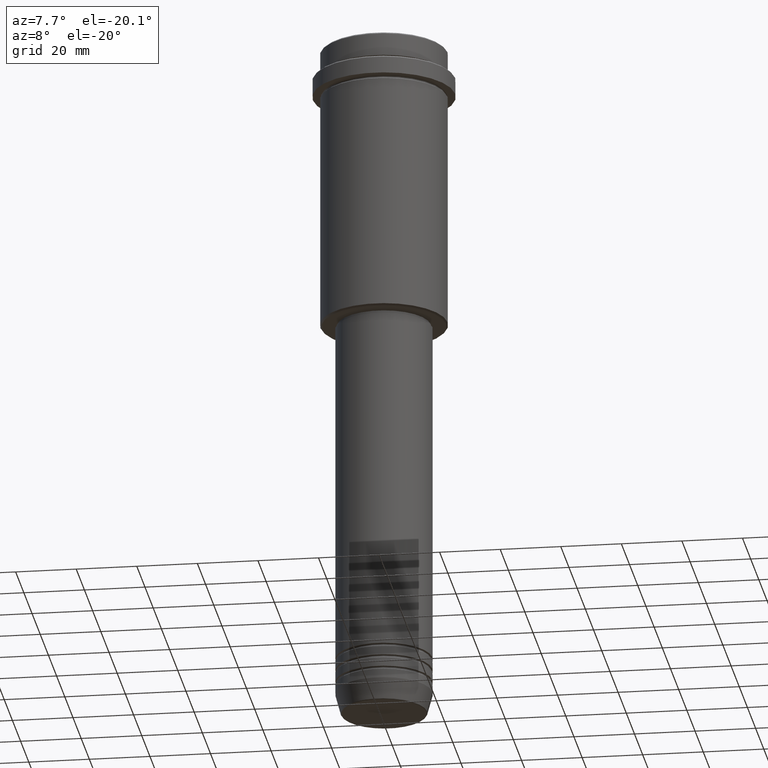
[diagram: clean part render]
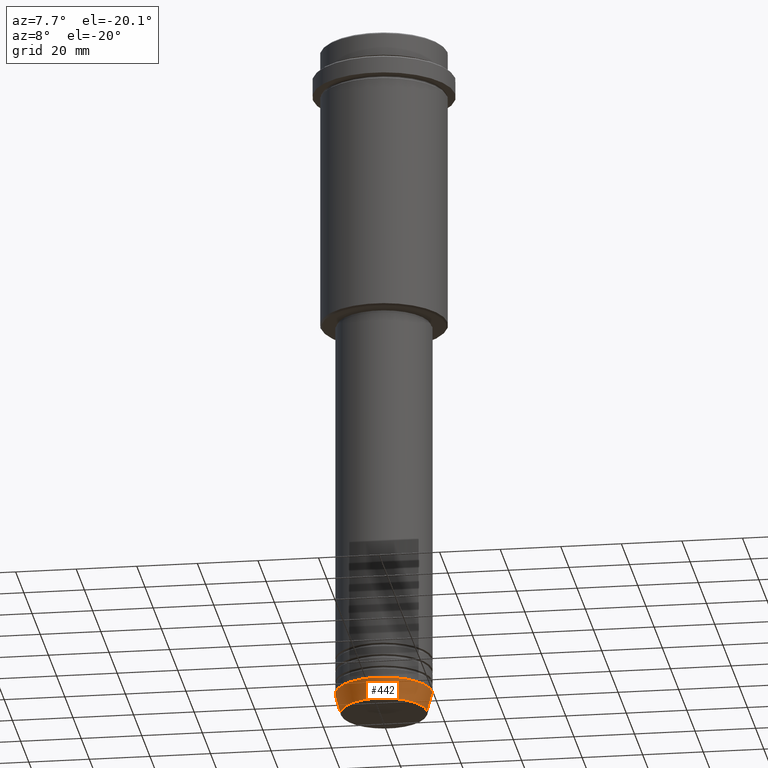
[diagram: same view with one face highlighted and labeled with its STEP entity id]
A machine part, auxiliary view. The second image highlights one B-rep face of the part: STEP entity #442.
In plain terms, the highlighted conical surface has half-angle 15 deg.
Its self-contained STEP definition (entity closure, byte-faithful):
#25 = CIRCLE ( 'NONE', #406, 16.00000000000000000 ) ;
#27 = ORIENTED_EDGE ( 'NONE', *, *, #572, .F. ) ;
#58 = LINE ( 'NONE', #279, #1054 ) ;
#74 = DIRECTION ( 'NONE',  ( -0.000000000000000000, -0.000000000000000000, 1.000000000000000000 ) ) ;
#102 = EDGE_CURVE ( 'NONE', #127, #584, #608, .T. ) ;
#121 = DIRECTION ( 'NONE',  ( -0.2588190451025205174, 3.169619151431761243E-17, 0.9659258262890684232 ) ) ;
#127 = VERTEX_POINT ( 'NONE', #922 ) ;
#176 = DIRECTION ( 'NONE',  ( 1.000000000000000000, 0.000000000000000000, 0.000000000000000000 ) ) ;
#217 = DIRECTION ( 'NONE',  ( 1.000000000000000000, 0.000000000000000000, 0.000000000000000000 ) ) ;
#279 = CARTESIAN_POINT ( 'NONE',  ( -16.00000000000000000, 1.959434878635765131E-15, -223.0000000000000284 ) ) ;
#355 = ORIENTED_EDGE ( 'NONE', *, *, #888, .T. ) ;
#406 = AXIS2_PLACEMENT_3D ( 'NONE', #797, #904, #1364 ) ;
#442 = ADVANCED_FACE ( 'NONE', ( #607 ), #1027, .T. ) ;
#503 = CIRCLE ( 'NONE', #796, 14.22365507213720548 ) ;
#509 = VERTEX_POINT ( 'NONE', #773 ) ;
#572 = EDGE_CURVE ( 'NONE', #583, #584, #25, .T. ) ;
#583 = VERTEX_POINT ( 'NONE', #1246 ) ;
#584 = VERTEX_POINT ( 'NONE', #918 ) ;
#598 = DIRECTION ( 'NONE',  ( 0.2588190451025205174, 0.000000000000000000, 0.9659258262890684232 ) ) ;
#607 = FACE_OUTER_BOUND ( 'NONE', #935, .T. ) ;
#608 = LINE ( 'NONE', #718, #1410 ) ;
#625 = EDGE_CURVE ( 'NONE', #509, #583, #58, .T. ) ;
#641 = AXIS2_PLACEMENT_3D ( 'NONE', #1157, #74, #176 ) ;
#703 = ORIENTED_EDGE ( 'NONE', *, *, #625, .F. ) ;
#718 = CARTESIAN_POINT ( 'NONE',  ( 16.00000000000000000, 0.000000000000000000, -223.0000000000000284 ) ) ;
#738 = DIRECTION ( 'NONE',  ( -0.000000000000000000, -0.000000000000000000, 1.000000000000000000 ) ) ;
#773 = CARTESIAN_POINT ( 'NONE',  ( -14.22365507213720548, 1.850665122131324520E-15, -229.6294095225512990 ) ) ;
#796 = AXIS2_PLACEMENT_3D ( 'NONE', #843, #738, #217 ) ;
#797 = CARTESIAN_POINT ( 'NONE',  ( 0.000000000000000000, 0.000000000000000000, -223.0000000000000284 ) ) ;
#843 = CARTESIAN_POINT ( 'NONE',  ( 0.000000000000000000, 0.000000000000000000, -229.6294095225512990 ) ) ;
#888 = EDGE_CURVE ( 'NONE', #509, #127, #503, .T. ) ;
#904 = DIRECTION ( 'NONE',  ( -0.000000000000000000, -0.000000000000000000, 1.000000000000000000 ) ) ;
#918 = CARTESIAN_POINT ( 'NONE',  ( 16.00000000000000000, 0.000000000000000000, -223.0000000000000284 ) ) ;
#922 = CARTESIAN_POINT ( 'NONE',  ( 14.22365507213720548, 0.000000000000000000, -229.6294095225512990 ) ) ;
#935 = EDGE_LOOP ( 'NONE', ( #703, #355, #1415, #27 ) ) ;
#1027 = CONICAL_SURFACE ( 'NONE', #641, 16.00000000000000000, 0.2617993877991491303 ) ;
#1054 = VECTOR ( 'NONE', #121, 1000.000000000000114 ) ;
#1157 = CARTESIAN_POINT ( 'NONE',  ( 0.000000000000000000, 0.000000000000000000, -223.0000000000000284 ) ) ;
#1246 = CARTESIAN_POINT ( 'NONE',  ( -16.00000000000000000, 1.959434878635765131E-15, -223.0000000000000284 ) ) ;
#1364 = DIRECTION ( 'NONE',  ( 1.000000000000000000, 0.000000000000000000, 0.000000000000000000 ) ) ;
#1410 = VECTOR ( 'NONE', #598, 1000.000000000000114 ) ;
#1415 = ORIENTED_EDGE ( 'NONE', *, *, #102, .T. ) ;